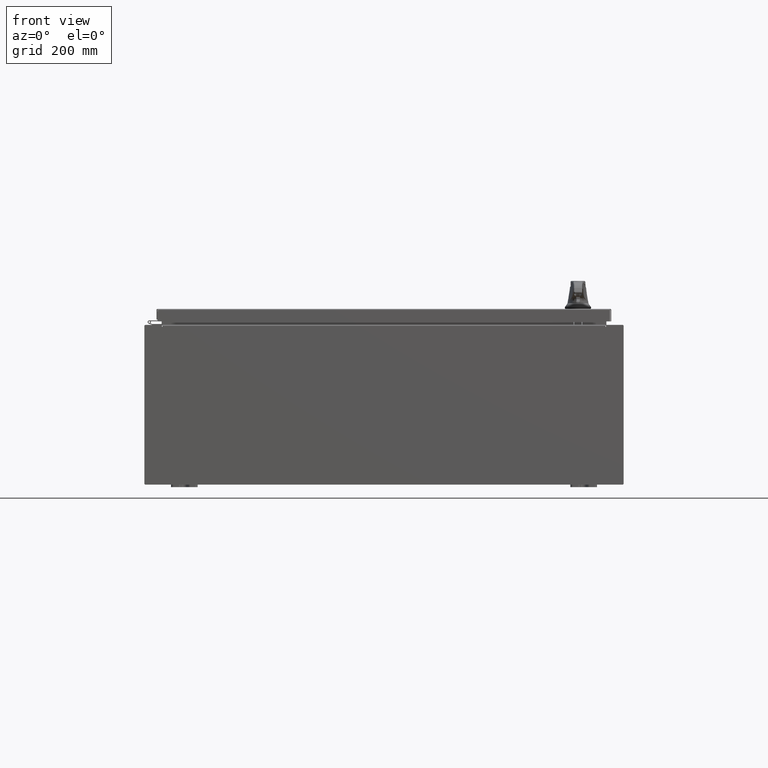
[diagram: clean part render]
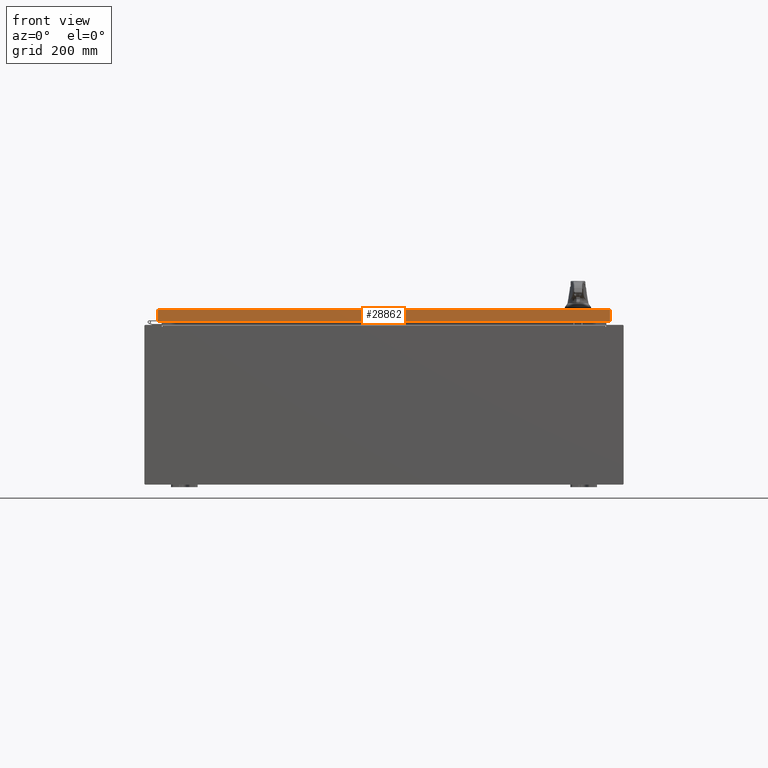
[diagram: same view with one face highlighted and labeled with its STEP entity id]
A machine part, front view. The second image highlights one B-rep face of the part: STEP entity #28862.
In plain terms, the highlighted planar face has unit normal (-0, 1, -0).
Its self-contained STEP definition (entity closure, byte-faithful):
#4886 = VECTOR ( 'NONE', #55132, 39.37007874015748100 ) ;
#9985 = CARTESIAN_POINT ( 'NONE',  ( -16.98915786437627100, -17.09399999999999800, 4.354999984715587200E-014 ) ) ;
#10914 = LINE ( 'NONE', #83844, #4886 ) ;
#12261 = CARTESIAN_POINT ( 'NONE',  ( -16.98915786437626700, -17.09400000000000100, -0.9376999999999954300 ) ) ;
#13732 = LINE ( 'NONE', #59051, #90871 ) ;
#13824 = VERTEX_POINT ( 'NONE', #12261 ) ;
#14538 = EDGE_CURVE ( 'NONE', #120164, #13824, #13732, .T. ) ;
#19740 = DIRECTION ( 'NONE',  ( 0.0000000000000000000, -2.532419924601866100E-015, -1.000000000000000000 ) ) ;
#22808 = EDGE_CURVE ( 'NONE', #86592, #13824, #106299, .T. ) ;
#26446 = DIRECTION ( 'NONE',  ( 1.000000000000000000, 3.240747764440338900E-031, -8.113934696013458900E-046 ) ) ;
#28862 = ADVANCED_FACE ( 'NONE', ( #96500 ), #90274, .F. ) ;
#32392 = DIRECTION ( 'NONE',  ( -3.240747764440338400E-031, 1.000000000000000000, -2.532419924601866100E-015 ) ) ;
#35804 = EDGE_CURVE ( 'NONE', #86592, #56159, #76030, .T. ) ;
#45363 = EDGE_CURVE ( 'NONE', #56159, #120164, #10914, .T. ) ;
#55132 = DIRECTION ( 'NONE',  ( -0.0000000000000000000, -2.532419924601866100E-015, -1.000000000000000000 ) ) ;
#56159 = VERTEX_POINT ( 'NONE', #120397 ) ;
#59051 = CARTESIAN_POINT ( 'NONE',  ( 17.07799999999999900, -17.09400000000000100, -0.9376999999999997600 ) ) ;
#70587 = CARTESIAN_POINT ( 'NONE',  ( -16.98915786437626700, -17.09399999999999800, -0.08770000000000008300 ) ) ;
#70836 = CARTESIAN_POINT ( 'NONE',  ( 5.539734228534313800E-030, -17.09399999999999800, 4.354999984715587200E-014 ) ) ;
#76030 = LINE ( 'NONE', #84289, #98726 ) ;
#76647 = ORIENTED_EDGE ( 'NONE', *, *, #22808, .T. ) ;
#80527 = VECTOR ( 'NONE', #19740, 39.37007874015748100 ) ;
#80630 = EDGE_LOOP ( 'NONE', ( #107288, #76647, #100493, #85811 ) ) ;
#83844 = CARTESIAN_POINT ( 'NONE',  ( 16.98915786437627100, -17.09399999999999800, -0.07469999999999980800 ) ) ;
#84289 = CARTESIAN_POINT ( 'NONE',  ( 17.07799999999999900, -17.09399999999999800, -0.08770000000000008300 ) ) ;
#85811 = ORIENTED_EDGE ( 'NONE', *, *, #45363, .F. ) ;
#86592 = VERTEX_POINT ( 'NONE', #70587 ) ;
#90274 = PLANE ( 'NONE',  #109558 ) ;
#90613 = CARTESIAN_POINT ( 'NONE',  ( 16.98915786437627100, -17.09400000000000100, -0.9376999999999997600 ) ) ;
#90871 = VECTOR ( 'NONE', #117012, 39.37007874015748100 ) ;
#96500 = FACE_OUTER_BOUND ( 'NONE', #80630, .T. ) ;
#98726 = VECTOR ( 'NONE', #26446, 39.37007874015748100 ) ;
#100004 = DIRECTION ( 'NONE',  ( 0.0000000000000000000, 2.532419924601866100E-015, 1.000000000000000000 ) ) ;
#100493 = ORIENTED_EDGE ( 'NONE', *, *, #14538, .F. ) ;
#106299 = LINE ( 'NONE', #9985, #80527 ) ;
#107288 = ORIENTED_EDGE ( 'NONE', *, *, #35804, .F. ) ;
#109558 = AXIS2_PLACEMENT_3D ( 'NONE', #70836, #32392, #100004 ) ;
#117012 = DIRECTION ( 'NONE',  ( -1.000000000000000000, 4.379057701015054300E-047, 1.279703943630056800E-016 ) ) ;
#120164 = VERTEX_POINT ( 'NONE', #90613 ) ;
#120397 = CARTESIAN_POINT ( 'NONE',  ( 16.98915786437626700, -17.09399999999999800, -0.08770000000000008300 ) ) ;